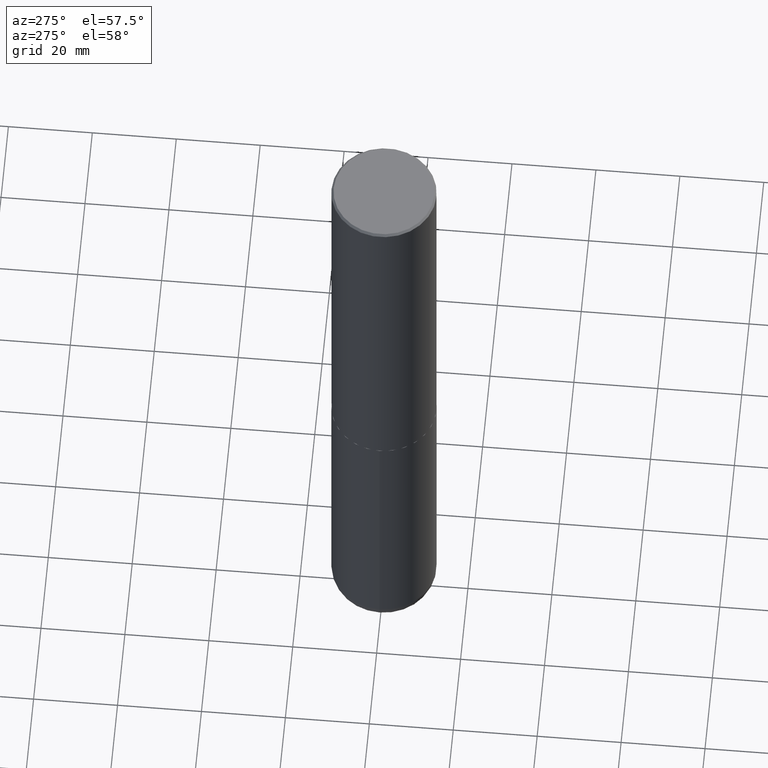
[diagram: clean part render]
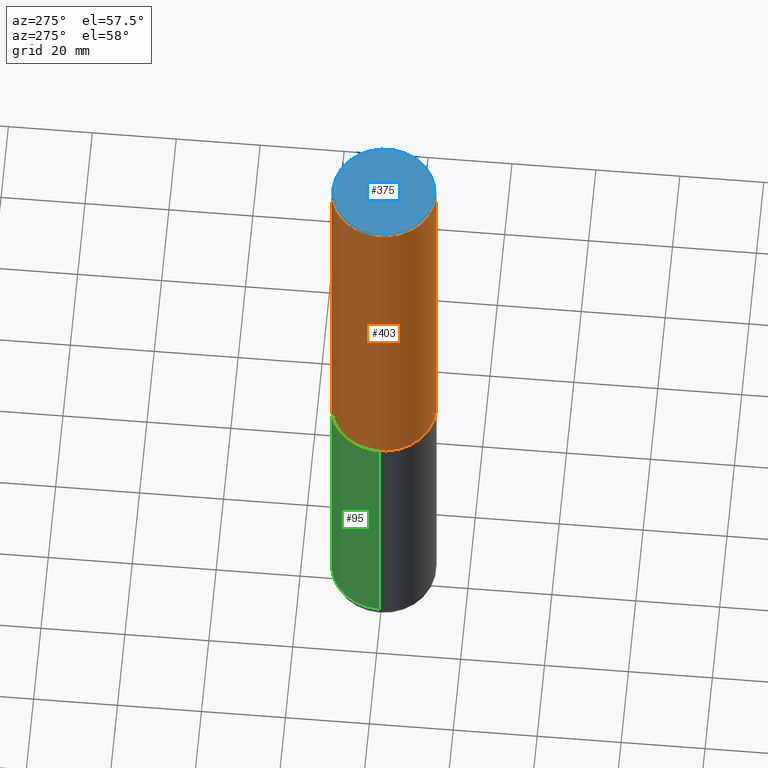
[diagram: same view with three faces highlighted in distinct colors, each labeled with its STEP entity id]
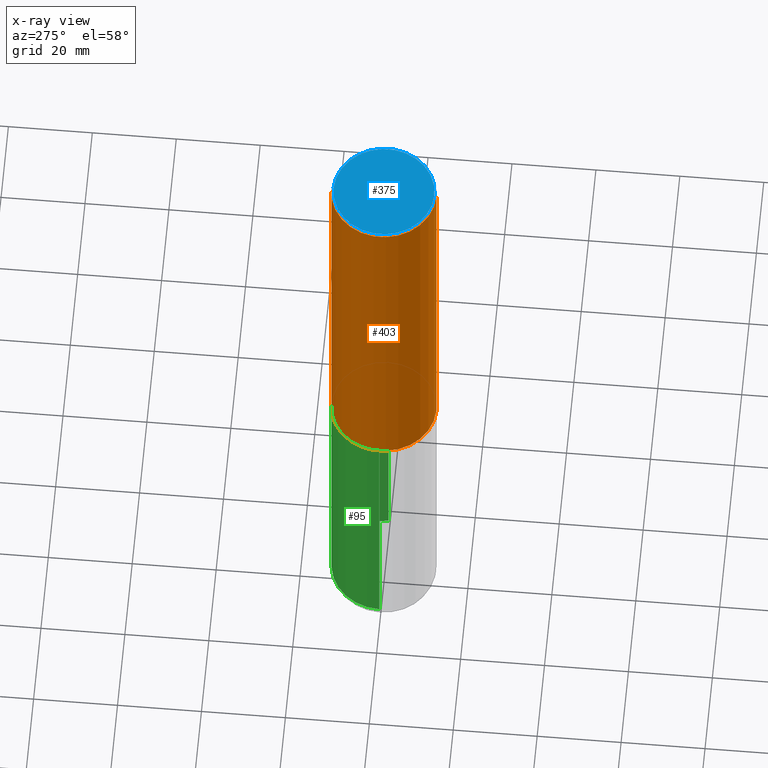
[diagram: x-ray of the same camera — body ghosted, the three highlighted faces saturated]
A machine part, auxiliary view with three faces highlighted in distinct colors.
The next image is the same camera in x-ray (body ghosted, the three faces saturated) — at least one of them is partly hidden behind the body in this view.
Their STEP definitions:

[orange] entity #403 — the highlighted cylindrical surface (partial cylindrical patch) has radius 12.5006 mm, axis along (-0, 0, 1).
#1 = EDGE_CURVE ( 'NONE', #43, #233, #223, .T. ) ;
#9 = DIRECTION ( 'NONE',  ( -6.982962677686265922E-15, -1.000000000000000000, 3.330506545156063496E-15 ) ) ;
#12 = CYLINDRICAL_SURFACE ( 'NONE', #215, 0.4921500000000000874 ) ;
#19 = EDGE_LOOP ( 'NONE', ( #254, #106, #195, #122 ) ) ;
#43 = VERTEX_POINT ( 'NONE', #62 ) ;
#51 = DIRECTION ( 'NONE',  ( -6.982962677686265922E-15, -1.000000000000000000, 3.490754157143982552E-15 ) ) ;
#52 = CARTESIAN_POINT ( 'NONE',  ( 0.000000000000000000, 0.000000000000000000, 0.000000000000000000 ) ) ;
#59 = CIRCLE ( 'NONE', #207, 0.4921500000000003650 ) ;
#62 = CARTESIAN_POINT ( 'NONE',  ( 3.436665081823295777E-15, 0.4921499999999998098, -0.02000000000000182188 ) ) ;
#65 = VECTOR ( 'NONE', #90, 39.37007874015748143 ) ;
#67 = EDGE_CURVE ( 'NONE', #127, #233, #228, .T. ) ;
#87 = AXIS2_PLACEMENT_3D ( 'NONE', #121, #261, #322 ) ;
#90 = DIRECTION ( 'NONE',  ( -2.445976594451651672E-29, 3.490754157143982552E-15, 1.000000000000000000 ) ) ;
#106 = ORIENTED_EDGE ( 'NONE', *, *, #250, .T. ) ;
#121 = CARTESIAN_POINT ( 'NONE',  ( 4.891953188903329688E-31, -6.981508314288001687E-17, -0.02000000000000010797 ) ) ;
#122 = ORIENTED_EDGE ( 'NONE', *, *, #1, .F. ) ;
#127 = VERTEX_POINT ( 'NONE', #139 ) ;
#139 = CARTESIAN_POINT ( 'NONE',  ( -3.436665081823207030E-15, -0.4921500000000134101, -3.739099999999998758 ) ) ;
#195 = ORIENTED_EDGE ( 'NONE', *, *, #67, .T. ) ;
#207 = AXIS2_PLACEMENT_3D ( 'NONE', #319, #299, #9 ) ;
#215 = AXIS2_PLACEMENT_3D ( 'NONE', #52, #393, #51 ) ;
#223 = CIRCLE ( 'NONE', #87, 0.4921499999999999209 ) ;
#228 = LINE ( 'NONE', #277, #65 ) ;
#233 = VERTEX_POINT ( 'NONE', #317 ) ;
#239 = VERTEX_POINT ( 'NONE', #412 ) ;
#241 = DIRECTION ( 'NONE',  ( -2.445976594451651672E-29, 3.490754157143982552E-15, 1.000000000000000000 ) ) ;
#244 = CARTESIAN_POINT ( 'NONE',  ( 3.496936074043333291E-15, 0.4921500000000000874, -1.717974658438411319E-15 ) ) ;
#250 = EDGE_CURVE ( 'NONE', #239, #127, #59, .T. ) ;
#254 = ORIENTED_EDGE ( 'NONE', *, *, #337, .F. ) ;
#261 = DIRECTION ( 'NONE',  ( -2.445976594451651952E-29, 3.490754157143982552E-15, 1.000000000000000000 ) ) ;
#277 = CARTESIAN_POINT ( 'NONE',  ( -3.436665081823296565E-15, -0.4921500000000000874, 1.717974658438411319E-15 ) ) ;
#299 = DIRECTION ( 'NONE',  ( -2.445976594451651952E-29, 3.490754157143982552E-15, 1.000000000000000000 ) ) ;
#302 = FACE_OUTER_BOUND ( 'NONE', #19, .T. ) ;
#317 = CARTESIAN_POINT ( 'NONE',  ( -3.376394089603257868E-15, -0.4921499999999999764, -0.01999999999999839059 ) ) ;
#319 = CARTESIAN_POINT ( 'NONE',  ( 9.145751084314172604E-29, -1.305227886897706845E-14, -3.739100000000000534 ) ) ;
#322 = DIRECTION ( 'NONE',  ( -6.982962677686265922E-15, -1.000000000000000000, 3.486624039460257331E-15 ) ) ;
#333 = LINE ( 'NONE', #244, #384 ) ;
#337 = EDGE_CURVE ( 'NONE', #239, #43, #333, .T. ) ;
#384 = VECTOR ( 'NONE', #241, 39.37007874015748143 ) ;
#393 = DIRECTION ( 'NONE',  ( -2.445976594451651952E-29, 3.490754157143982552E-15, 1.000000000000000000 ) ) ;
#403 = ADVANCED_FACE ( 'NONE', ( #302 ), #12, .T. ) ;
#412 = CARTESIAN_POINT ( 'NONE',  ( 3.496936074043380229E-15, 0.4921499999999873198, -3.739100000000002311 ) ) ;

[blue] entity #375 — the highlighted planar face has unit normal (0, -0, -1).
#16 = FACE_OUTER_BOUND ( 'NONE', #76, .T. ) ;
#40 = AXIS2_PLACEMENT_3D ( 'NONE', #401, #210, #117 ) ;
#44 = ORIENTED_EDGE ( 'NONE', *, *, #397, .T. ) ;
#46 = ORIENTED_EDGE ( 'NONE', *, *, #123, .T. ) ;
#71 = CARTESIAN_POINT ( 'NONE',  ( 3.366835455046432084E-15, 0.4721499999999996255, -1.426540264649568516E-15 ) ) ;
#75 = CARTESIAN_POINT ( 'NONE',  ( -5.420756467185317189E-45, 7.736185299407739239E-31, 2.216193106459615290E-16 ) ) ;
#76 = EDGE_LOOP ( 'NONE', ( #44, #46 ) ) ;
#89 = DIRECTION ( 'NONE',  ( -2.445976594451651952E-29, 3.490754157143982552E-15, 1.000000000000000000 ) ) ;
#116 = CARTESIAN_POINT ( 'NONE',  ( -5.420756467185317189E-45, 7.736185299407739239E-31, 2.216193106459615290E-16 ) ) ;
#117 = DIRECTION ( 'NONE',  ( 6.982962677686265922E-15, 1.000000000000000000, -3.490754157143982552E-15 ) ) ;
#123 = EDGE_CURVE ( 'NONE', #275, #240, #350, .T. ) ;
#154 = CARTESIAN_POINT ( 'NONE',  ( -3.307789109625541747E-15, -0.4721499999999996255, 1.869778885941491673E-15 ) ) ;
#175 = AXIS2_PLACEMENT_3D ( 'NONE', #116, #297, #211 ) ;
#210 = DIRECTION ( 'NONE',  ( 2.445976594451651392E-29, -3.490754157143982552E-15, -1.000000000000000000 ) ) ;
#211 = DIRECTION ( 'NONE',  ( -6.982962677686265922E-15, -1.000000000000000000, 3.490754157143982946E-15 ) ) ;
#240 = VERTEX_POINT ( 'NONE', #71 ) ;
#275 = VERTEX_POINT ( 'NONE', #154 ) ;
#297 = DIRECTION ( 'NONE',  ( -2.445976594451651952E-29, 3.490754157143982552E-15, 1.000000000000000000 ) ) ;
#339 = DIRECTION ( 'NONE',  ( -6.982962677686265922E-15, -1.000000000000000000, 3.490754157143982946E-15 ) ) ;
#341 = CIRCLE ( 'NONE', #389, 0.4721499999999996255 ) ;
#350 = CIRCLE ( 'NONE', #175, 0.4721499999999996255 ) ;
#366 = PLANE ( 'NONE',  #40 ) ;
#375 = ADVANCED_FACE ( 'NONE', ( #16 ), #366, .F. ) ;
#389 = AXIS2_PLACEMENT_3D ( 'NONE', #75, #89, #339 ) ;
#397 = EDGE_CURVE ( 'NONE', #240, #275, #341, .T. ) ;
#401 = CARTESIAN_POINT ( 'NONE',  ( 3.297005828269567997E-15, 0.4721499999999996255, -1.537349919972549256E-15 ) ) ;

[green] entity #95 — the highlighted cylindrical surface (partial cylindrical patch) has radius 12.5006 mm, axis along (-0, 0, 1).
#20 = CARTESIAN_POINT ( 'NONE',  ( 0.4921499999999999764, -3.436665081823295777E-15, 2.399810400207969603E-29 ) ) ;
#21 = FACE_OUTER_BOUND ( 'NONE', #152, .T. ) ;
#30 = EDGE_CURVE ( 'NONE', #164, #166, #413, .T. ) ;
#39 = ORIENTED_EDGE ( 'NONE', *, *, #386, .T. ) ;
#68 = CARTESIAN_POINT ( 'NONE',  ( 9.146297882013029477E-29, -1.305848935540725085E-14, -3.740100000000000424 ) ) ;
#85 = CARTESIAN_POINT ( 'NONE',  ( -0.4921499999999999764, -1.437263999222282936E-14, -3.740100000000000424 ) ) ;
#86 = DIRECTION ( 'NONE',  ( -2.445468806185136597E-29, 3.491481338843145583E-15, 1.000000000000000000 ) ) ;
#95 = ADVANCED_FACE ( 'NONE', ( #21 ), #274, .T. ) ;
#98 = CIRCLE ( 'NONE', #327, 0.4921499999999999764 ) ;
#112 = CARTESIAN_POINT ( 'NONE',  ( 0.000000000000000000, 0.000000000000000000, 0.000000000000000000 ) ) ;
#115 = CARTESIAN_POINT ( 'NONE',  ( 1.588576536497864771E-28, -2.268066277712507367E-14, -6.495999999999999552 ) ) ;
#129 = VECTOR ( 'NONE', #146, 39.37007874015748143 ) ;
#131 = EDGE_CURVE ( 'NONE', #174, #166, #273, .T. ) ;
#135 = DIRECTION ( 'NONE',  ( -2.445468806185136597E-29, 3.491481338843145583E-15, 1.000000000000000000 ) ) ;
#138 = DIRECTION ( 'NONE',  ( -2.445468806185136877E-29, 3.491481338843145188E-15, 1.000000000000000000 ) ) ;
#141 = VERTEX_POINT ( 'NONE', #268 ) ;
#146 = DIRECTION ( 'NONE',  ( -2.445468806185136877E-29, 3.491481338843145188E-15, 1.000000000000000000 ) ) ;
#152 = EDGE_LOOP ( 'NONE', ( #39, #196, #202, #269 ) ) ;
#164 = VERTEX_POINT ( 'NONE', #267 ) ;
#166 = VERTEX_POINT ( 'NONE', #85 ) ;
#174 = VERTEX_POINT ( 'NONE', #303 ) ;
#177 = EDGE_CURVE ( 'NONE', #141, #164, #338, .T. ) ;
#196 = ORIENTED_EDGE ( 'NONE', *, *, #131, .T. ) ;
#202 = ORIENTED_EDGE ( 'NONE', *, *, #30, .F. ) ;
#212 = DIRECTION ( 'NONE',  ( 1.000000000000000000, -6.982962677686265922E-15, 0.000000000000000000 ) ) ;
#236 = AXIS2_PLACEMENT_3D ( 'NONE', #68, #135, #415 ) ;
#237 = CARTESIAN_POINT ( 'NONE',  ( -0.4921499999999999764, 3.496936074043332897E-15, -2.420853904668951509E-29 ) ) ;
#248 = DIRECTION ( 'NONE',  ( 1.000000000000000000, -6.982962677686265922E-15, 4.876176775795935793E-29 ) ) ;
#267 = CARTESIAN_POINT ( 'NONE',  ( 0.4921499999999999764, -1.649515443723054663E-14, -3.740100000000000424 ) ) ;
#268 = CARTESIAN_POINT ( 'NONE',  ( 0.4921499999999997543, -2.611732785894836787E-14, -6.495999999999999552 ) ) ;
#269 = ORIENTED_EDGE ( 'NONE', *, *, #177, .F. ) ;
#273 = LINE ( 'NONE', #237, #320 ) ;
#274 = CYLINDRICAL_SURFACE ( 'NONE', #414, 0.4921499999999999764 ) ;
#303 = CARTESIAN_POINT ( 'NONE',  ( -0.4921499999999997543, -1.918372670308173998E-14, -6.495999999999999552 ) ) ;
#320 = VECTOR ( 'NONE', #138, 39.37007874015748143 ) ;
#327 = AXIS2_PLACEMENT_3D ( 'NONE', #115, #364, #212 ) ;
#338 = LINE ( 'NONE', #20, #129 ) ;
#364 = DIRECTION ( 'NONE',  ( -2.445468806185136597E-29, 3.491481338843145583E-15, 1.000000000000000000 ) ) ;
#386 = EDGE_CURVE ( 'NONE', #141, #174, #98, .T. ) ;
#413 = CIRCLE ( 'NONE', #236, 0.4921499999999999764 ) ;
#414 = AXIS2_PLACEMENT_3D ( 'NONE', #112, #86, #248 ) ;
#415 = DIRECTION ( 'NONE',  ( 1.000000000000000000, -6.982962677686265922E-15, 0.000000000000000000 ) ) ;